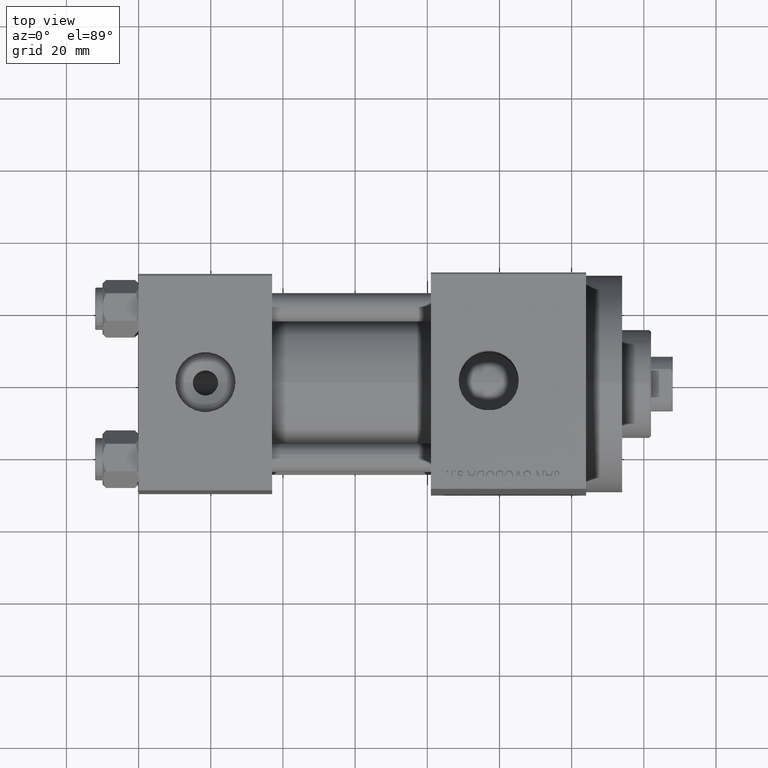
[diagram: clean part render]
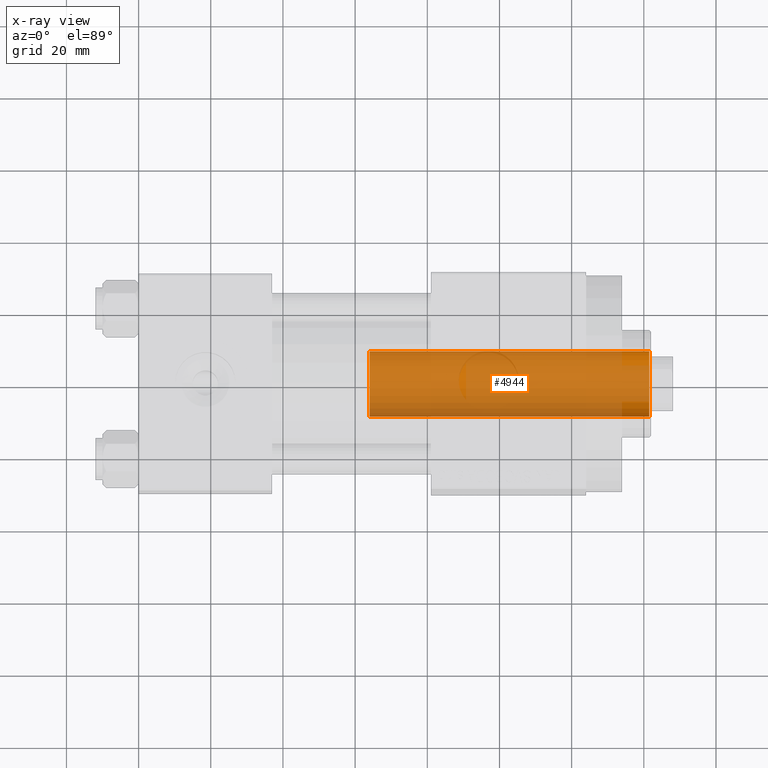
[diagram: x-ray — body ghosted, one internal face saturated and labeled with its STEP entity id]
A machine part, top view, then the same camera in x-ray: the body is ghosted and one INTERNAL B-rep face — a face not visible from any outside direction — is saturated and labeled: STEP entity #4944.
In plain terms, the highlighted cylindrical surface (edge-blend (fillet) strip) has radius 9 mm, axis along (-1, 0, 0).
Its self-contained STEP definition (entity closure, byte-faithful):
#36 = VECTOR ( 'NONE', #28510, 1000.000000000000000 ) ;
#4679 = AXIS2_PLACEMENT_3D ( 'NONE', #26540, #29647, #30601 ) ;
#4944 = ADVANCED_FACE ( 'NONE', ( #46889 ), #28753, .T. ) ;
#5471 = VERTEX_POINT ( 'NONE', #23180 ) ;
#6076 = CARTESIAN_POINT ( 'NONE',  ( 9.000000000000000000, 1.102182119232617714E-15, 104.5000000000000000 ) ) ;
#6131 = EDGE_LOOP ( 'NONE', ( #6768, #29251, #9235, #22381 ) ) ;
#6768 = ORIENTED_EDGE ( 'NONE', *, *, #34191, .T. ) ;
#9235 = ORIENTED_EDGE ( 'NONE', *, *, #35368, .T. ) ;
#11106 = EDGE_CURVE ( 'NONE', #44280, #33825, #46887, .T. ) ;
#11296 = DIRECTION ( 'NONE',  ( 1.000000000000000000, 0.000000000000000000, 0.000000000000000000 ) ) ;
#12251 = CARTESIAN_POINT ( 'NONE',  ( 0.000000000000000000, 0.000000000000000000, 104.5000000000000000 ) ) ;
#13932 = CARTESIAN_POINT ( 'NONE',  ( 9.000000000000000000, 1.102182119232617714E-15, 105.0000000000000000 ) ) ;
#14461 = LINE ( 'NONE', #37155, #23206 ) ;
#18422 = CIRCLE ( 'NONE', #4679, 9.000000000000000000 ) ;
#18846 = VERTEX_POINT ( 'NONE', #34438 ) ;
#21823 = CARTESIAN_POINT ( 'NONE',  ( 0.000000000000000000, 0.000000000000000000, 105.0000000000000000 ) ) ;
#22065 = DIRECTION ( 'NONE',  ( -1.000000000000000000, 0.000000000000000000, 0.000000000000000000 ) ) ;
#22295 = DIRECTION ( 'NONE',  ( -0.000000000000000000, -0.000000000000000000, -1.000000000000000000 ) ) ;
#22381 = ORIENTED_EDGE ( 'NONE', *, *, #39490, .F. ) ;
#23180 = CARTESIAN_POINT ( 'NONE',  ( -9.000000000000000000, 0.000000000000000000, 104.5000000000000000 ) ) ;
#23206 = VECTOR ( 'NONE', #29042, 1000.000000000000000 ) ;
#26540 = CARTESIAN_POINT ( 'NONE',  ( 0.000000000000000000, 0.000000000000000000, 27.00000000000000000 ) ) ;
#27555 = AXIS2_PLACEMENT_3D ( 'NONE', #12251, #33508, #11296 ) ;
#28510 = DIRECTION ( 'NONE',  ( -0.000000000000000000, -0.000000000000000000, -1.000000000000000000 ) ) ;
#28753 = CYLINDRICAL_SURFACE ( 'NONE', #33416, 9.000000000000000000 ) ;
#29042 = DIRECTION ( 'NONE',  ( -0.000000000000000000, -0.000000000000000000, -1.000000000000000000 ) ) ;
#29251 = ORIENTED_EDGE ( 'NONE', *, *, #11106, .T. ) ;
#29647 = DIRECTION ( 'NONE',  ( 0.000000000000000000, 0.000000000000000000, 1.000000000000000000 ) ) ;
#30601 = DIRECTION ( 'NONE',  ( 1.000000000000000000, 0.000000000000000000, 0.000000000000000000 ) ) ;
#32074 = CIRCLE ( 'NONE', #27555, 9.000000000000000000 ) ;
#33416 = AXIS2_PLACEMENT_3D ( 'NONE', #21823, #22295, #22065 ) ;
#33508 = DIRECTION ( 'NONE',  ( 0.000000000000000000, 0.000000000000000000, -1.000000000000000000 ) ) ;
#33825 = VERTEX_POINT ( 'NONE', #38117 ) ;
#34191 = EDGE_CURVE ( 'NONE', #5471, #44280, #32074, .T. ) ;
#34438 = CARTESIAN_POINT ( 'NONE',  ( -9.000000000000000000, 0.000000000000000000, 27.00000000000000000 ) ) ;
#35368 = EDGE_CURVE ( 'NONE', #33825, #18846, #18422, .T. ) ;
#37155 = CARTESIAN_POINT ( 'NONE',  ( -9.000000000000000000, 0.000000000000000000, 105.0000000000000000 ) ) ;
#38117 = CARTESIAN_POINT ( 'NONE',  ( 9.000000000000000000, 1.102182119232617714E-15, 27.00000000000000000 ) ) ;
#39490 = EDGE_CURVE ( 'NONE', #5471, #18846, #14461, .T. ) ;
#44280 = VERTEX_POINT ( 'NONE', #6076 ) ;
#46887 = LINE ( 'NONE', #13932, #36 ) ;
#46889 = FACE_OUTER_BOUND ( 'NONE', #6131, .T. ) ;